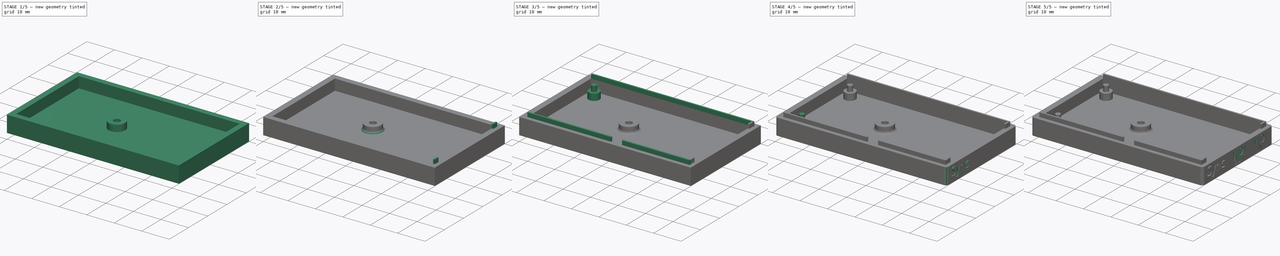
[diagram: build sequence overview — one tinted view per stage of 5, left to right]
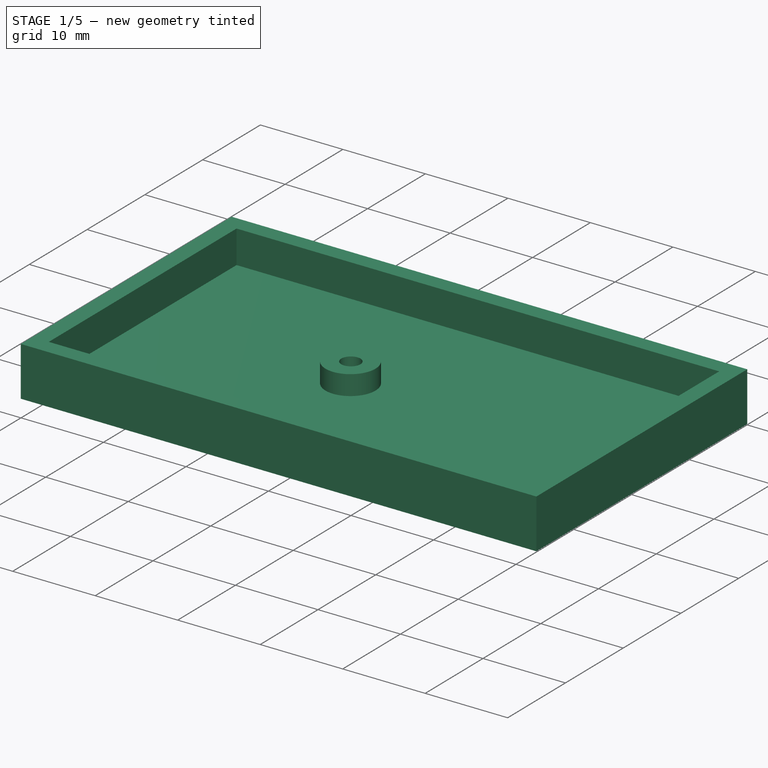
[diagram: stage 1 of 5 — iso view after this stage's code; geometry added in this stage tinted green]
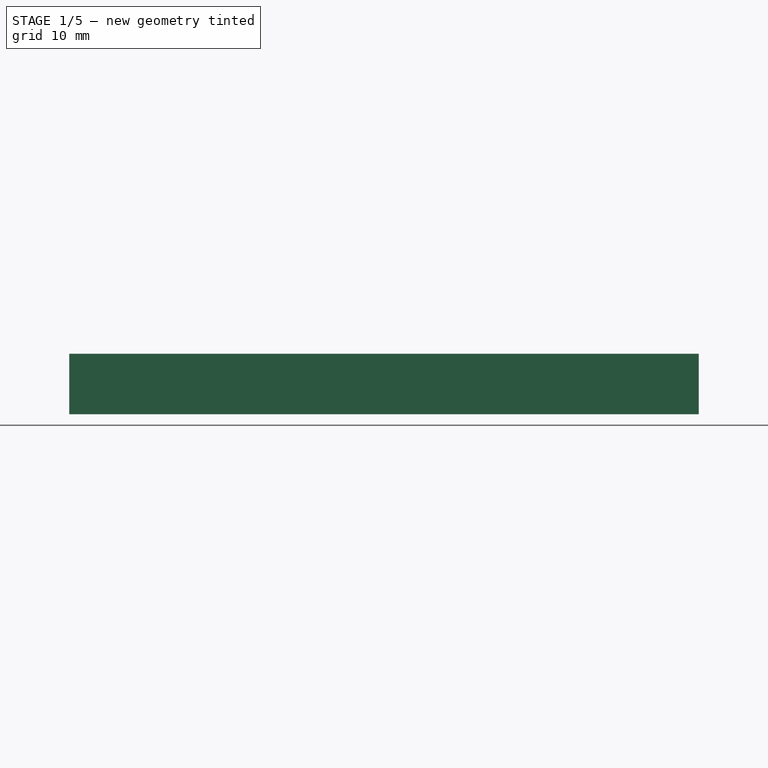
[diagram: stage 1 of 5 — front view after this stage's code; geometry added in this stage tinted green]
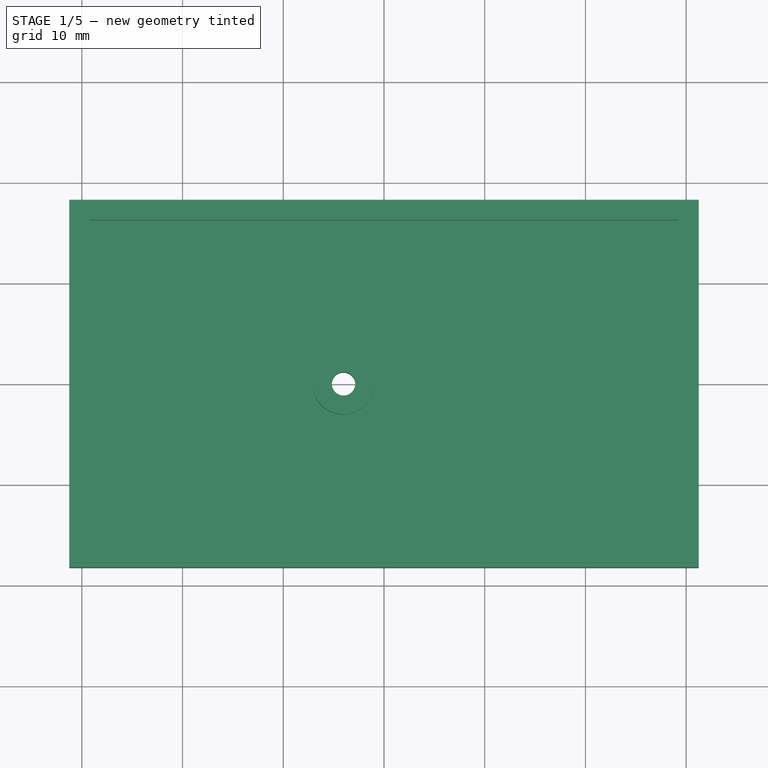
[diagram: stage 1 of 5 — top view after this stage's code; geometry added in this stage tinted green]
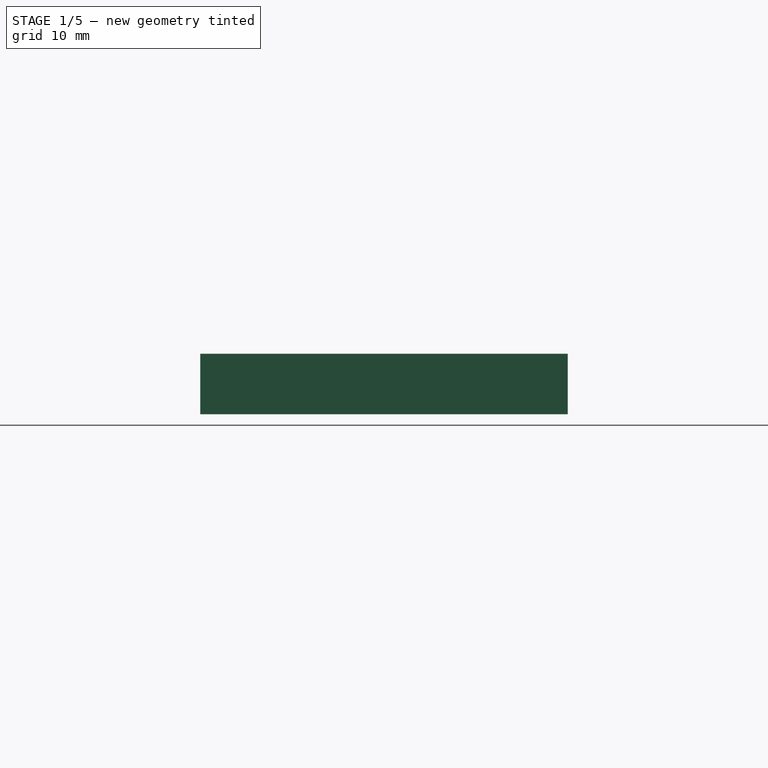
[diagram: stage 1 of 5 — right view after this stage's code; geometry added in this stage tinted green]
FCSTD DOCUMENT  (FreeCAD 0.21R33771 (Git))
Label: UM2S-case-bottom
License: All rights reserved
LicenseURL: http://en.wikipedia.org/wiki/All_rights_reserved
objects: Sketcher::SketchObject×11, PartDesign::Pocket×9, PartDesign::Pad×7, Part::Part2DObjectPython×5, PartDesign::Fillet×2, PartDesign::Body×1
note: 53 computed .brp shape members not serialized (recipe doc carries the construction recipe); baked Part::Feature solids carry a one-line shape summary decoded from their .brp

FEATURE [Sketcher::SketchObject] Sketch
  FullyConstrained = true
  MapMode = 5
  Support = -> [XY_Plane]
  sketch-geometry (5):
    g0: LineSegment StartX=-31.25 StartY=18.25 StartZ=0 EndX=-31.25 EndY=-18.25 EndZ=0
    g1: LineSegment StartX=-31.25 StartY=-18.25 StartZ=0 EndX=31.25 EndY=-18.25 EndZ=0
    g2: LineSegment StartX=31.25 StartY=-18.25 StartZ=0 EndX=31.25 EndY=18.25 EndZ=0
    g3: LineSegment StartX=31.25 StartY=18.25 StartZ=0 EndX=-31.25 EndY=18.25 EndZ=0
    g4: GeomPoint X=0 Y=0 Z=0
  constraints (12):
    c: Coincident(g0,g1)
    c: Coincident(g1,g2)
    c: Coincident(g2,g3)
    c: Coincident(g3,g0)
    c: Horizontal(g1)
    c: Horizontal(g3)
    c: Vertical(g0)
    c: Vertical(g2)
    c: Symmetric(g1,g0,g4)
    c: Coincident(g4,g-1)
    c: Distance(g3) = 62.5
    c: Distance(g0) = 36.5
FEATURE [PartDesign::Pad] Pad
  Direction = (0,0,1)
  Length = 6
  Length2 = 10
  Profile = -> Sketch
  ReferenceAxis = -> Sketch [N_Axis]
  Type = 0
FEATURE [Sketcher::SketchObject] Sketch001
  FullyConstrained = true
  MapMode = 5
  Placement = pos=(0,0,6) rot=(0,0,1;0rad)
  Support = -> [Pad]
  sketch-geometry (5):
    g0: LineSegment StartX=-29.25 StartY=16.25 StartZ=0 EndX=-29.25 EndY=-16.25 EndZ=0
    g1: LineSegment StartX=-29.25 StartY=-16.25 StartZ=0 EndX=29.25 EndY=-16.25 EndZ=0
    g2: LineSegment StartX=29.25 StartY=-16.25 StartZ=0 EndX=29.25 EndY=16.25 EndZ=0
    g3: LineSegment StartX=29.25 StartY=16.25 StartZ=0 EndX=-29.25 EndY=16.25 EndZ=0
    g4: GeomPoint X=0 Y=0 Z=0
  constraints (12):
    c: Coincident(g0,g1)
    c: Coincident(g1,g2)
    c: Coincident(g2,g3)
    c: Coincident(g3,g0)
    c: Horizontal(g1)
    c: Horizontal(g3)
    c: Vertical(g0)
    c: Vertical(g2)
    c: Symmetric(g1,g0,g4)
    c: Coincident(g4,g-1)
    c: Distance(g3) = 58.5
    c: Distance(g0) = 32.5
FEATURE [PartDesign::Pocket] Pocket
  BaseFeature = -> Pad
  Direction = (0,0,-1)
  Length = 4
  Length2 = 5
  Profile = -> Sketch001
  ReferenceAxis = -> Sketch001 [N_Axis]
  Type = 0
FEATURE [Sketcher::SketchObject] Sketch002
  FullyConstrained = false
  MapMode = 5
  Placement = pos=(0,0,2) rot=(0,0,1;0rad)
  Support = -> [Pocket]
  sketch-geometry (1):
    g0: Circle CenterX=-4.06089 CenterY=0 CenterZ=0 NormalX=0 NormalY=0 NormalZ=1 AngleXU=0 Radius=3.02598
  constraints (1):
    c: PointOnObject(g0,g-1)
FEATURE [PartDesign::Pad] Pad001
  BaseFeature = -> Pocket
  Direction = (0,0,1)
  Length = 2.4
  Length2 = 10
  Profile = -> Sketch002
  ReferenceAxis = -> Sketch002 [N_Axis]
  Type = 0
FEATURE [Sketcher::SketchObject] Sketch003
  FullyConstrained = false
  MapMode = 5
  Placement = pos=(0,0,4.4) rot=(0,0,1;0rad)
  Support = -> [Pad001]
  sketch-geometry (1):
    g0: Circle CenterX=-4.01571 CenterY=0 CenterZ=0 NormalX=0 NormalY=0 NormalZ=1 AngleXU=0 Radius=1.1626
  constraints (1):
    c: PointOnObject(g0,g-1)
FEATURE [PartDesign::Pocket] Pocket001
  BaseFeature = -> Pad001
  Direction = (0,0,-1)
  Length = 5
  Length2 = 5
  Profile = -> Sketch003
  ReferenceAxis = -> Sketch003 [N_Axis]
  Type = 0
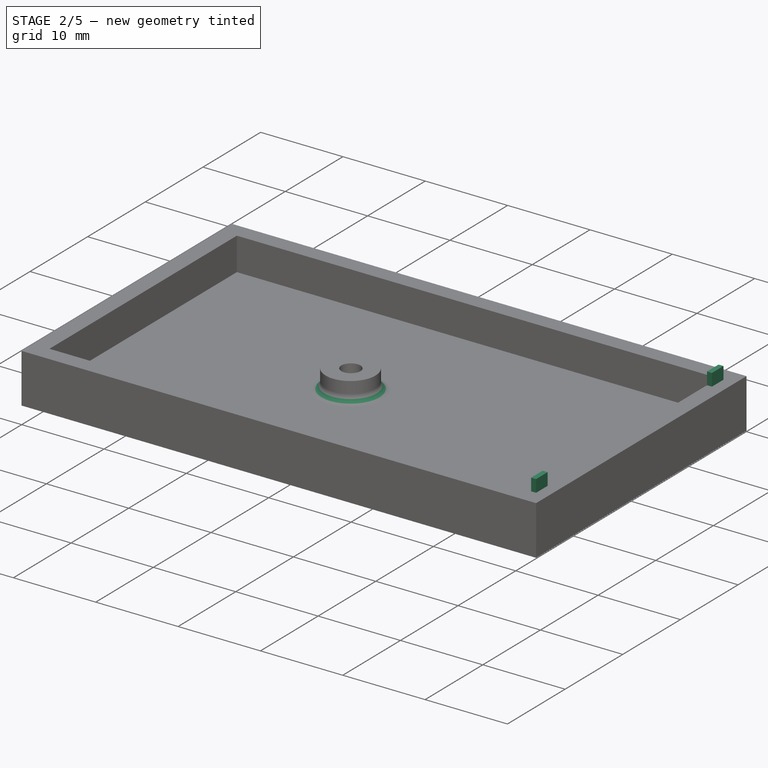
[diagram: stage 2 of 5 — iso view after this stage's code; geometry added in this stage tinted green]
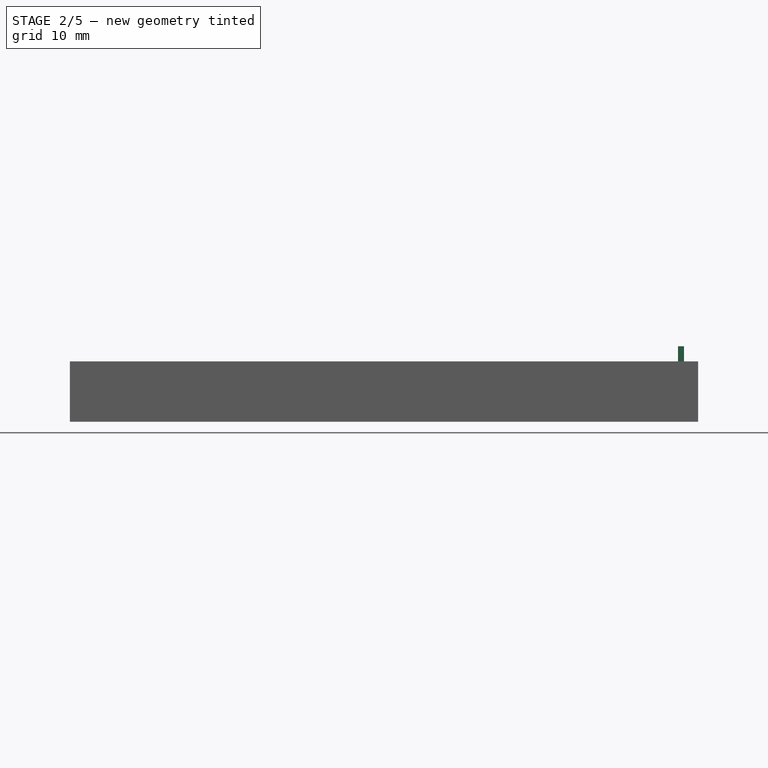
[diagram: stage 2 of 5 — front view after this stage's code; geometry added in this stage tinted green]
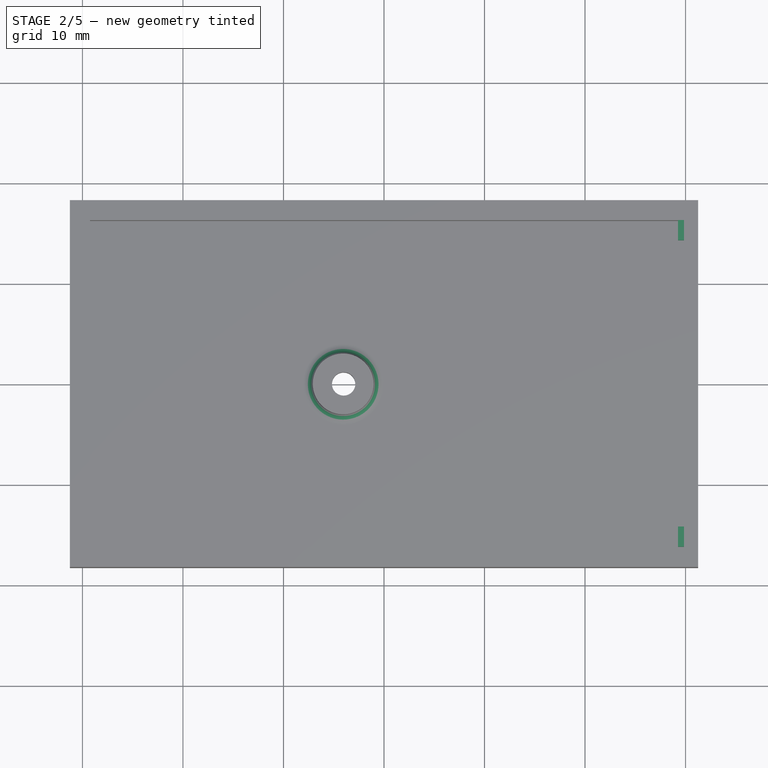
[diagram: stage 2 of 5 — top view after this stage's code; geometry added in this stage tinted green]
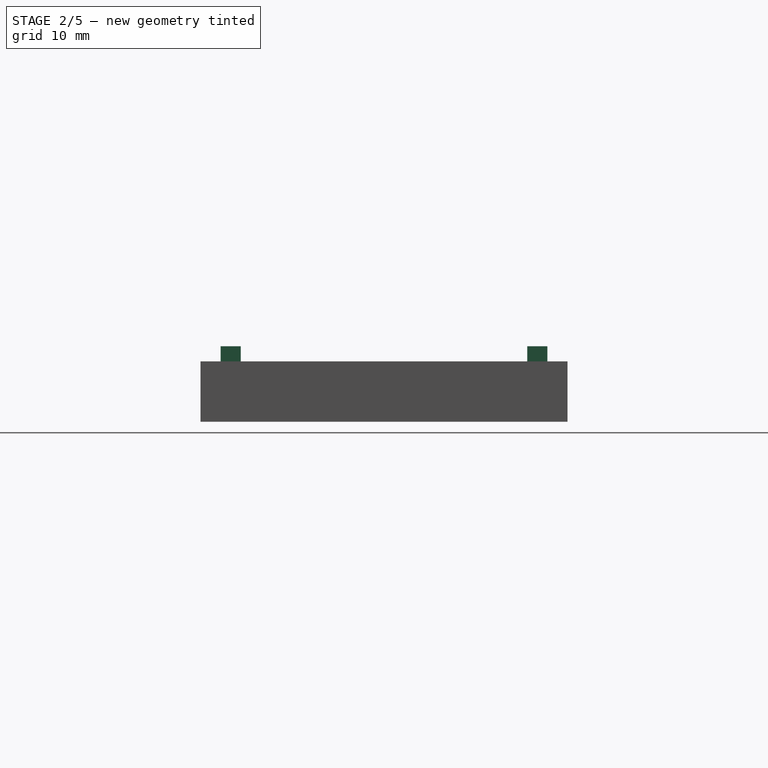
[diagram: stage 2 of 5 — right view after this stage's code; geometry added in this stage tinted green]
FEATURE [Sketcher::SketchObject] Sketch004
  FullyConstrained = false
  MapMode = 5
  Placement = pos=(0,0,0) rot=(1,0,0;3.14159rad)
  Support = -> [Pocket001]
  sketch-geometry (1):
    g0: Circle CenterX=-4.03353 CenterY=0 CenterZ=0 NormalX=0 NormalY=0 NormalZ=1 AngleXU=0 Radius=1.9
  constraints (2):
    c: PointOnObject(g0,g-1)
    c: Diameter(g0) = 3.8
FEATURE [PartDesign::Pocket] Pocket002
  BaseFeature = -> Pocket001
  Direction = (0,0,1)
  Length = 1.35
  Length2 = 5
  Profile = -> Sketch004
  ReferenceAxis = -> Sketch004 [N_Axis]
  Type = 0
FEATURE [PartDesign::Fillet] Fillet
  Base = -> Pocket002 [Edge29]
  BaseFeature = -> Pocket002
  Radius = 1
  SupportTransform = false
  UseAllEdges = false
FEATURE [Sketcher::SketchObject] Sketch005
  ExternalGeometry = -> [Fillet]
  FullyConstrained = true
  MapMode = 5
  Placement = pos=(0,0,6) rot=(0,0,1;0rad)
  Support = -> [Fillet]
  sketch-geometry (8):
    g0: LineSegment StartX=29.25 StartY=16.25 StartZ=0 EndX=29.85 EndY=16.25 EndZ=0
    g1: LineSegment StartX=29.85 StartY=16.25 StartZ=0 EndX=29.85 EndY=14.25 EndZ=0
    g2: LineSegment StartX=29.85 StartY=14.25 StartZ=0 EndX=29.25 EndY=14.25 EndZ=0
    g3: LineSegment StartX=29.25 StartY=14.25 StartZ=0 EndX=29.25 EndY=16.25 EndZ=0
    g4: LineSegment StartX=29.25 StartY=-16.25 StartZ=0 EndX=29.85 EndY=-16.25 EndZ=0
    g5: LineSegment StartX=29.85 StartY=-16.25 StartZ=0 EndX=29.85 EndY=-14.25 EndZ=0
    g6: LineSegment StartX=29.85 StartY=-14.25 StartZ=0 EndX=29.25 EndY=-14.25 EndZ=0
    g7: LineSegment StartX=29.25 StartY=-14.25 StartZ=0 EndX=29.25 EndY=-16.25 EndZ=0
  constraints (22):
    c: Coincident(g0,g1)
    c: Coincident(g1,g2)
    c: Coincident(g2,g3)
    c: Coincident(g3,g0)
    c: Horizontal(g0)
    c: Horizontal(g2)
    c: Vertical(g1)
    c: Vertical(g3)
    c: Coincident(g0,g-3)
    c: Distance(g0) = 0.6
    c: Distance(g1) = 2
    c: Coincident(g4,g5)
    c: Coincident(g5,g6)
    c: Coincident(g6,g7)
    c: Coincident(g7,g4)
    c: Horizontal(g4)
    c: Horizontal(g6)
    c: Vertical(g5)
    c: Vertical(g7)
    c: Coincident(g4,g-4)
    c: Distance(g4) = 0.6
    c: Distance(g5) = 2
FEATURE [PartDesign::Pad] Pad002
  BaseFeature = -> Fillet
  Direction = (0,0,1)
  Length = 1.5
  Length2 = 10
  Profile = -> Sketch005
  ReferenceAxis = -> Sketch005 [N_Axis]
  Type = 0
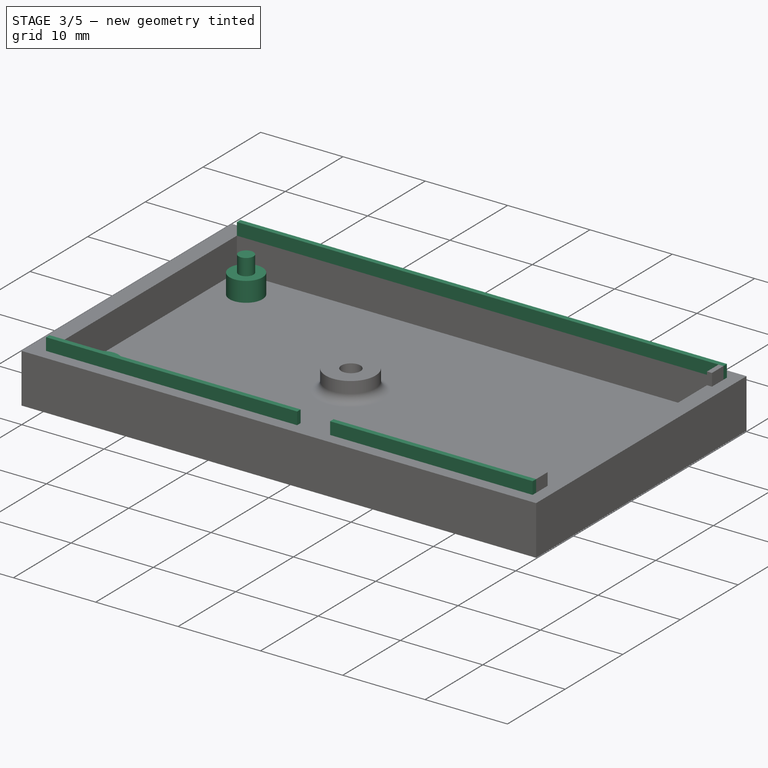
[diagram: stage 3 of 5 — iso view after this stage's code; geometry added in this stage tinted green]
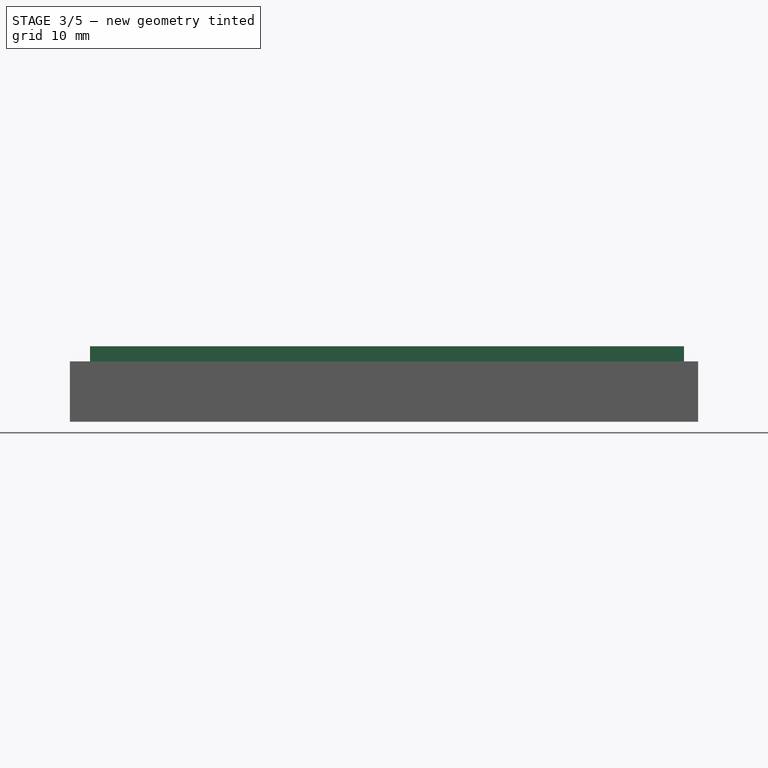
[diagram: stage 3 of 5 — front view after this stage's code; geometry added in this stage tinted green]
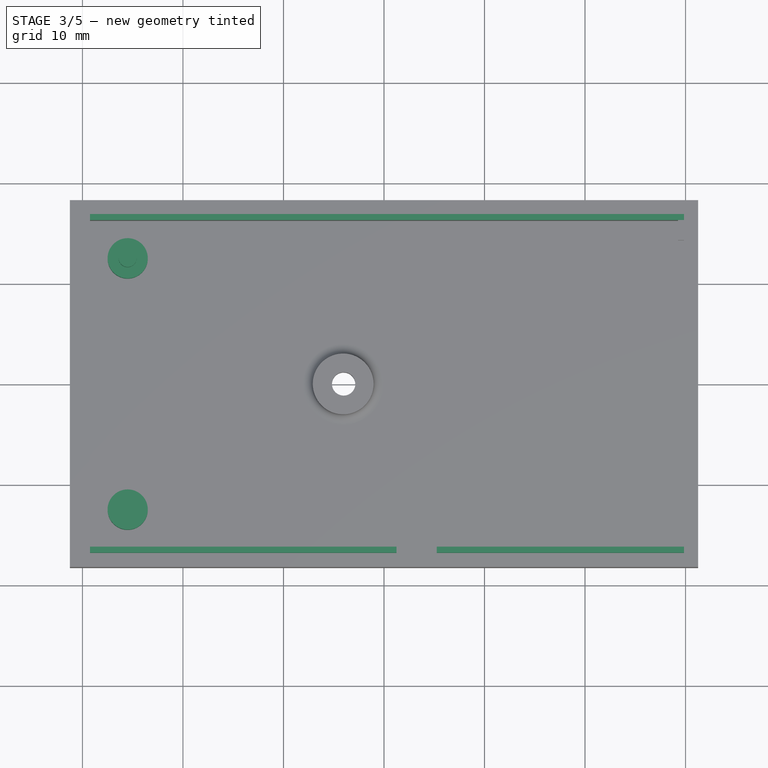
[diagram: stage 3 of 5 — top view after this stage's code; geometry added in this stage tinted green]
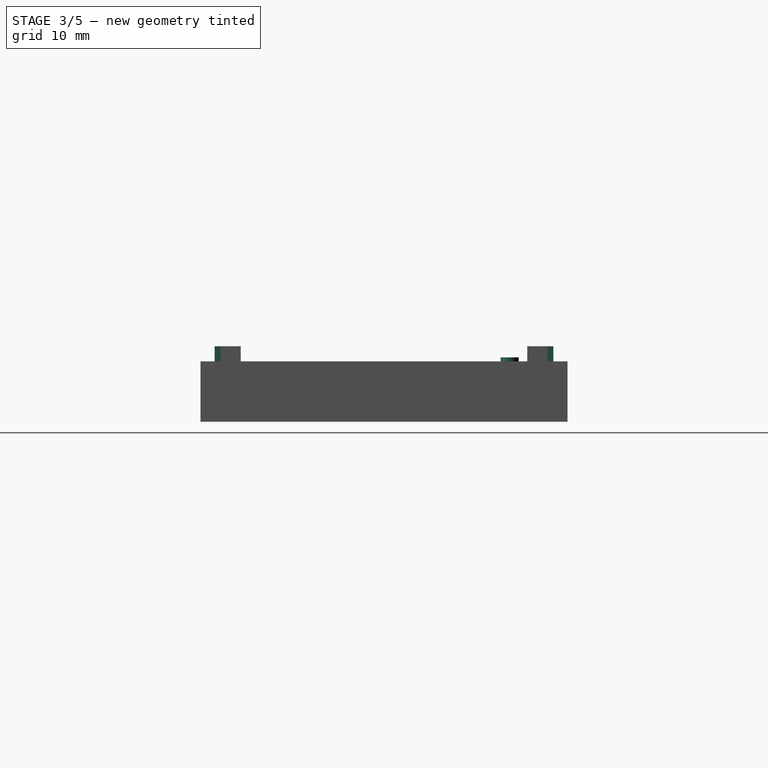
[diagram: stage 3 of 5 — right view after this stage's code; geometry added in this stage tinted green]
FEATURE [Sketcher::SketchObject] Sketch006
  ExternalGeometry = -> [Pad002]
  FullyConstrained = true
  MapMode = 5
  Placement = pos=(0,0,6) rot=(0,0,1;0rad)
  Support = -> [Pad002]
  sketch-geometry (8):
    g0: LineSegment StartX=-29.25 StartY=16.25 StartZ=0 EndX=29.85 EndY=16.25 EndZ=0
    g1: LineSegment StartX=29.85 StartY=16.25 StartZ=0 EndX=29.85 EndY=16.85 EndZ=0
    g2: LineSegment StartX=29.85 StartY=16.85 StartZ=0 EndX=-29.25 EndY=16.85 EndZ=0
    g3: LineSegment StartX=-29.25 StartY=16.85 StartZ=0 EndX=-29.25 EndY=16.25 EndZ=0
    g4: LineSegment StartX=-29.25 StartY=-16.25 StartZ=0 EndX=29.85 EndY=-16.25 EndZ=0
    g5: LineSegment StartX=29.85 StartY=-16.25 StartZ=0 EndX=29.85 EndY=-16.85 EndZ=0
    g6: LineSegment StartX=29.85 StartY=-16.85 StartZ=0 EndX=-29.25 EndY=-16.85 EndZ=0
    g7: LineSegment StartX=-29.25 StartY=-16.85 StartZ=0 EndX=-29.25 EndY=-16.25 EndZ=0
  constraints (22):
    c: Coincident(g0,g1)
    c: Coincident(g1,g2)
    c: Coincident(g2,g3)
    c: Coincident(g3,g0)
    c: Horizontal(g0)
    c: Horizontal(g2)
    c: Vertical(g1)
    c: Vertical(g3)
    c: Coincident(g0,g-3)
    c: Distance(g1) = 0.6
    c: Distance(g2) = 59.1
    c: Coincident(g4,g5)
    c: Coincident(g5,g6)
    c: Coincident(g6,g7)
    c: Coincident(g7,g4)
    c: Horizontal(g4)
    c: Horizontal(g6)
    c: Vertical(g5)
    c: Vertical(g7)
    c: Coincident(g4,g-5)
    c: Distance(g5) = 0.6
    c: Distance(g4) = 59.1
FEATURE [PartDesign::Pad] Pad003
  BaseFeature = -> Pad002
  Direction = (0,0,1)
  Length = 1.5
  Length2 = 10
  Profile = -> Sketch006
  ReferenceAxis = -> Sketch006 [N_Axis]
  Type = 0
FEATURE [Sketcher::SketchObject] Sketch007
  ExternalGeometry = -> [Pad003]
  FullyConstrained = false
  MapMode = 5
  Placement = pos=(0,0,7.5) rot=(0,0,1;0rad)
  Support = -> [Pad003]
  sketch-geometry (4):
    g0: LineSegment StartX=1.24973 StartY=-16.1778 StartZ=0 EndX=5.24973 EndY=-16.1778 EndZ=0
    g1: LineSegment StartX=5.24973 StartY=-16.1778 StartZ=0 EndX=5.24973 EndY=-16.9779 EndZ=0
    g2: LineSegment StartX=5.24973 StartY=-16.9779 StartZ=0 EndX=1.24973 EndY=-16.9779 EndZ=0
    g3: LineSegment StartX=1.24973 StartY=-16.9779 StartZ=0 EndX=1.24973 EndY=-16.1778 EndZ=0
  constraints (10):
    c: Coincident(g0,g1)
    c: Coincident(g1,g2)
    c: Coincident(g2,g3)
    c: Coincident(g3,g0)
    c: Horizontal(g0)
    c: Horizontal(g2)
    c: Vertical(g1)
    c: Vertical(g3)
    c: Distance(g0) = 4
    c: Distance(g-4,g2) = 30.5
FEATURE [PartDesign::Pocket] Pocket003
  BaseFeature = -> Pad003
  Direction = (0,0,-1)
  Length = 1.5
  Length2 = 5
  Profile = -> Sketch007
  ReferenceAxis = -> Sketch007 [N_Axis]
  Type = 0
FEATURE [Sketcher::SketchObject] Sketch008
  FullyConstrained = true
  MapMode = 5
  Placement = pos=(0,0,2) rot=(0,0,1;0rad)
  Support = -> [Pocket003]
  sketch-geometry (2):
    g0: Circle CenterX=-25.5 CenterY=12.5 CenterZ=0 NormalX=0 NormalY=0 NormalZ=1 AngleXU=0 Radius=2
    g1: Circle CenterX=-25.5 CenterY=-12.5 CenterZ=0 NormalX=0 NormalY=0 NormalZ=1 AngleXU=0 Radius=2
  constraints (6):
    c: Distance(g1,g-2) = 25.5
    c: Distance(g0,g-2) = 25.5
    c: Diameter(g0) = 4
    c: Diameter(g1) = 4
    c: Distance(g0,g-1) = 12.5
    c: Distance(g1,g-1) = 12.5
FEATURE [PartDesign::Pad] Pad004
  BaseFeature = -> Pocket003
  Direction = (0,0,1)
  Length = 2.4
  Length2 = 10
  Profile = -> Sketch008
  ReferenceAxis = -> Sketch008 [N_Axis]
  Type = 0
FEATURE [Sketcher::SketchObject] Sketch009
  FullyConstrained = true
  MapMode = 5
  Placement = pos=(0,0,4.4) rot=(0,0,1;0rad)
  Support = -> [Pad004]
  sketch-geometry (1):
    g0: Circle CenterX=-25.5 CenterY=12.5 CenterZ=0 NormalX=0 NormalY=0 NormalZ=1 AngleXU=0 Radius=0.9
  constraints (3):
    c: Distance(g0,g-2) = 25.5
    c: Distance(g0,g-1) = 12.5
    c: Diameter(g0) = 1.8
FEATURE [PartDesign::Pad] Pad005
  BaseFeature = -> Pad004
  Direction = (0,0,1)
  Length = 2
  Length2 = 10
  Profile = -> Sketch009
  ReferenceAxis = -> Sketch009 [N_Axis]
  Type = 0
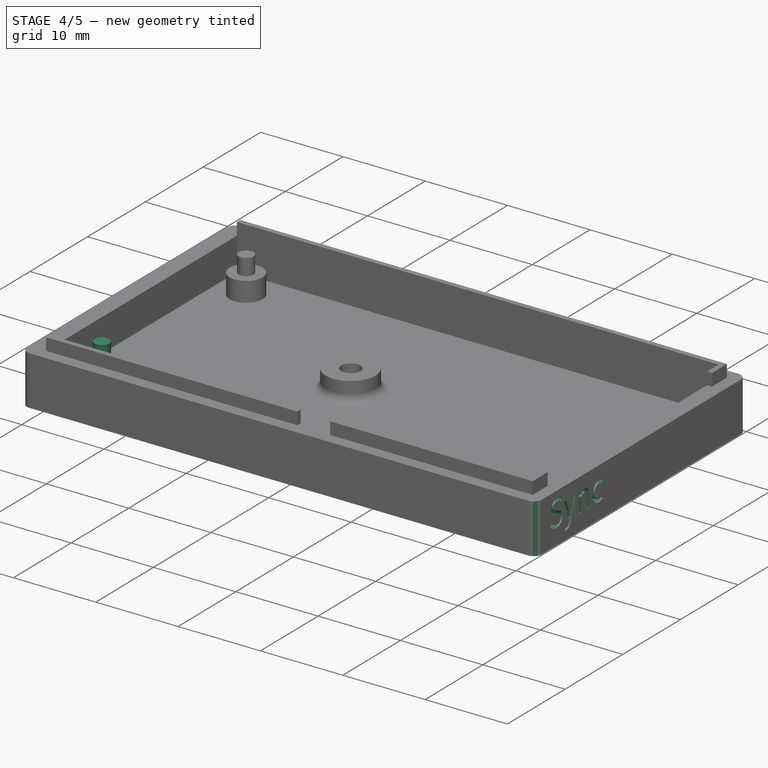
[diagram: stage 4 of 5 — iso view after this stage's code; geometry added in this stage tinted green]
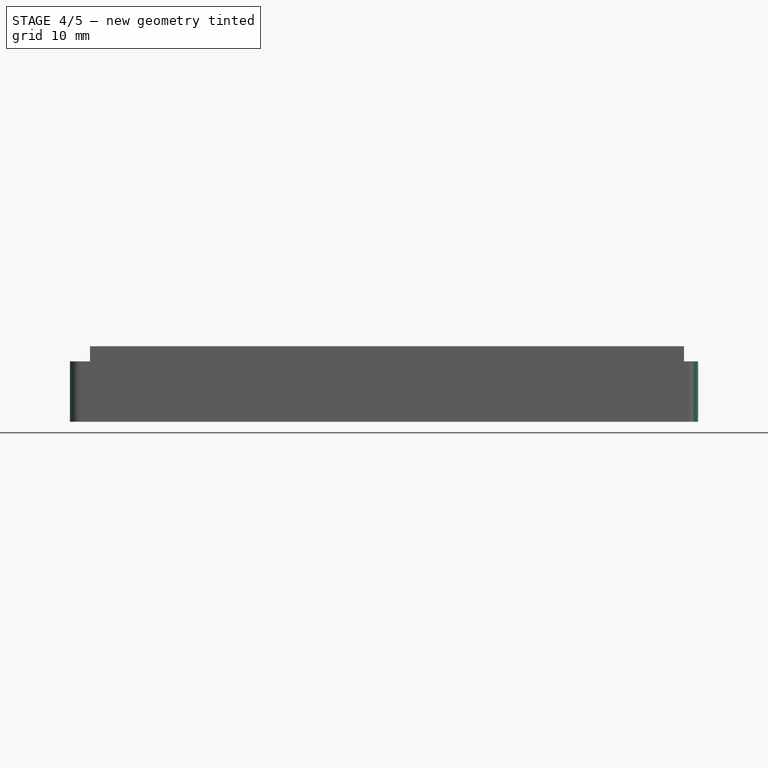
[diagram: stage 4 of 5 — front view after this stage's code; geometry added in this stage tinted green]
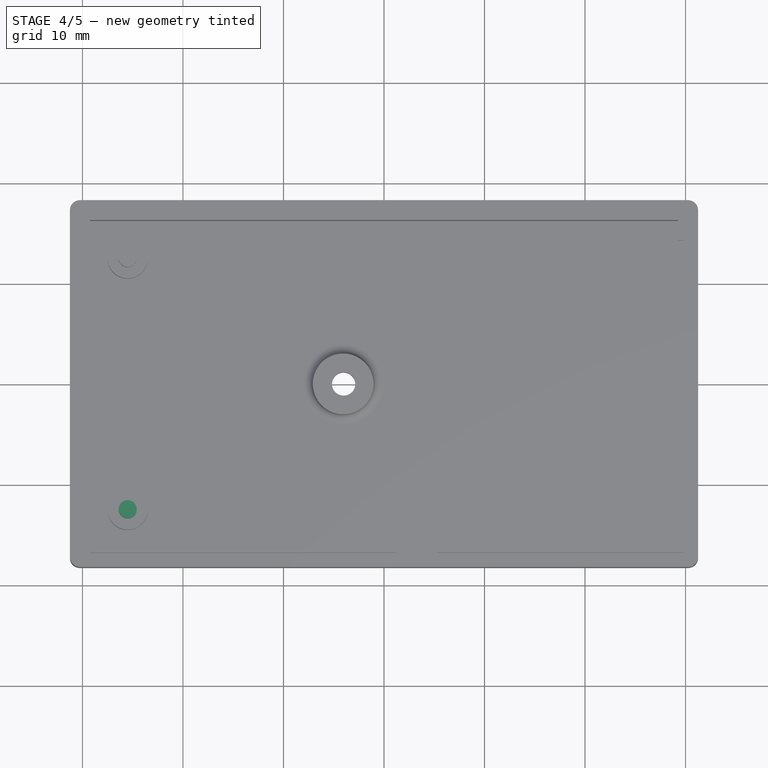
[diagram: stage 4 of 5 — top view after this stage's code; geometry added in this stage tinted green]
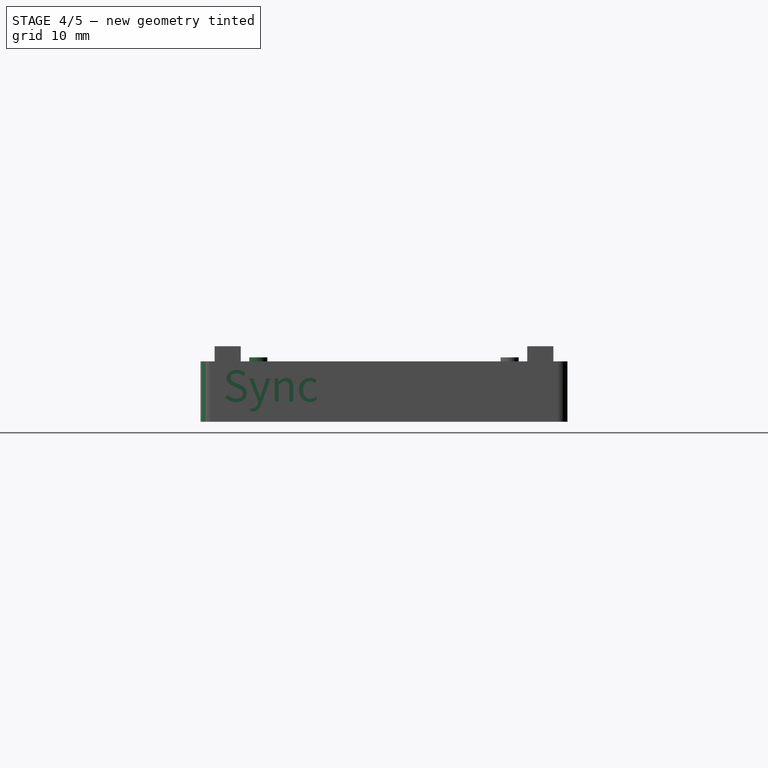
[diagram: stage 4 of 5 — right view after this stage's code; geometry added in this stage tinted green]
FEATURE [Sketcher::SketchObject] Sketch010
  FullyConstrained = true
  MapMode = 5
  Placement = pos=(0,0,4.4) rot=(0,0,1;0rad)
  Support = -> [Pad005]
  sketch-geometry (1):
    g0: Circle CenterX=-25.5 CenterY=-12.5 CenterZ=0 NormalX=0 NormalY=0 NormalZ=1 AngleXU=0 Radius=0.9
  constraints (3):
    c: Distance(g0,g-2) = 25.5
    c: Distance(g0,g-1) = 12.5
    c: Diameter(g0) = 1.8
FEATURE [PartDesign::Pad] Pad006
  BaseFeature = -> Pad005
  Direction = (0,0,1)
  Length = 2
  Length2 = 10
  Profile = -> Sketch010
  ReferenceAxis = -> Sketch010 [N_Axis]
  Type = 0
FEATURE [Part::Part2DObjectPython] ShapeString  # Draft 2D object (typed FeaturePython)
  AttachmentOffset = pos=(-16,2,0) rot=(0,0,1;0rad)
  FontFile = <userpath>/Documents/FreeCAD/SourceHanSansJP-Regular.otf
  MakeFace = true
  MapMode = 5
  Placement = pos=(31.25,-16,2) rot=(0.57735,0.57735,0.57735;2.0944rad)
  Size = 2
  String = Sync
  Support = -> [Pad006]
  Tracking = 0
FEATURE [Part::Part2DObjectPython] ShapeString001  # Draft 2D object (typed FeaturePython)
  AttachmentOffset = pos=(-3,2.6,0) rot=(0,0,1;0rad)
  FontFile = <userpath>/Documents/FreeCAD/SourceHanSansJP-Regular.otf
  MakeFace = true
  MapMode = 5
  Placement = pos=(31.25,-3,2.6) rot=(0.57735,0.57735,0.57735;2.0944rad)
  Size = 1.6
  String = MIDI
  Support = -> [Pad006]
  Tracking = 0
FEATURE [Part::Part2DObjectPython] ShapeString003  # Draft 2D object (typed FeaturePython)
  AttachmentOffset = pos=(8,2.5,0) rot=(0,0,1;0rad)
  FontFile = <userpath>/Documents/FreeCAD/SourceHanSansJP-Regular.otf
  MakeFace = true
  MapMode = 5
  Placement = pos=(31.25,8,2.5) rot=(0.57735,0.57735,0.57735;2.0944rad)
  Size = 1.6
  String = MIDI
  Support = -> [Pad006]
  Tracking = 0
FEATURE [Part::Part2DObjectPython] ShapeString004  # Draft 2D object (typed FeaturePython)
  AttachmentOffset = pos=(9,0.5,0) rot=(0,0,1;0rad)
  FontFile = <userpath>/Documents/FreeCAD/SourceHanSansJP-Regular.otf
  MakeFace = true
  MapMode = 5
  Placement = pos=(31.25,9,0.5) rot=(0.57735,0.57735,0.57735;2.0944rad)
  Size = 1.2
  String =   IN
  Support = -> [Pad006]
  Tracking = 0
FEATURE [PartDesign::Fillet] Fillet001
  Base = -> Pad006 [Edge67,Edge64,Edge65,Edge69]
  BaseFeature = -> Pad006
  Radius = 1
  SupportTransform = false
  UseAllEdges = false
FEATURE [PartDesign::Pocket] Pocket004
  BaseFeature = -> Fillet001
  Direction = (-1,0,0)
  Length = 1
  Length2 = 5
  Profile = -> ShapeString
  ReferenceAxis = -> ShapeString [N_Axis]
  Type = 0
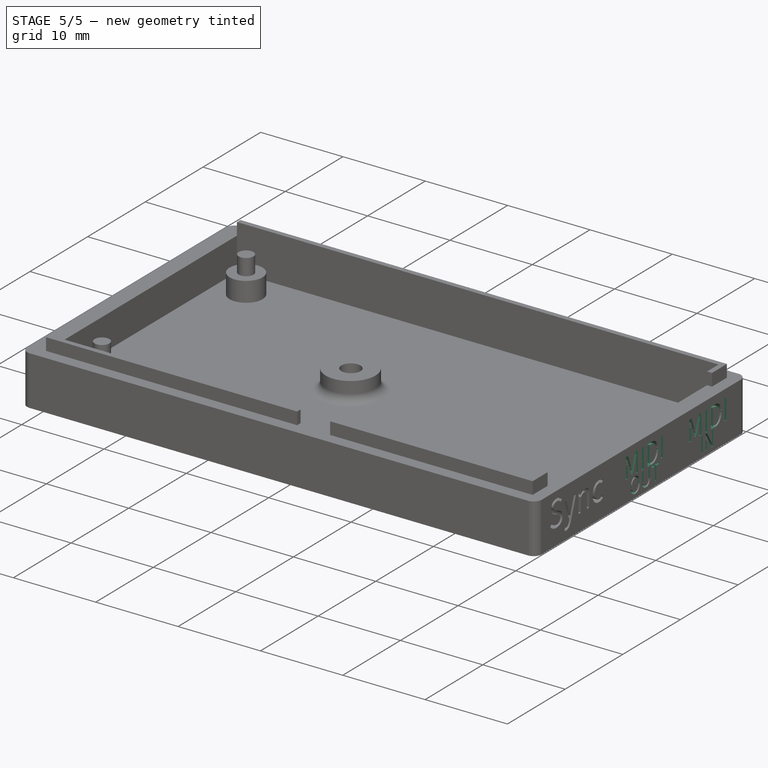
[diagram: stage 5 of 5 — iso view after this stage's code; geometry added in this stage tinted green]
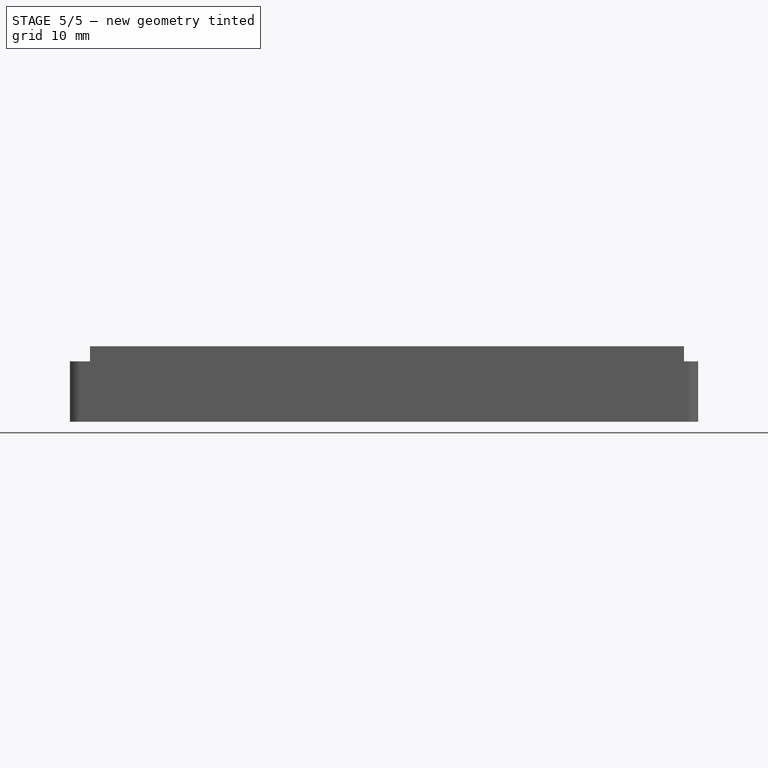
[diagram: stage 5 of 5 — front view after this stage's code; geometry added in this stage tinted green]
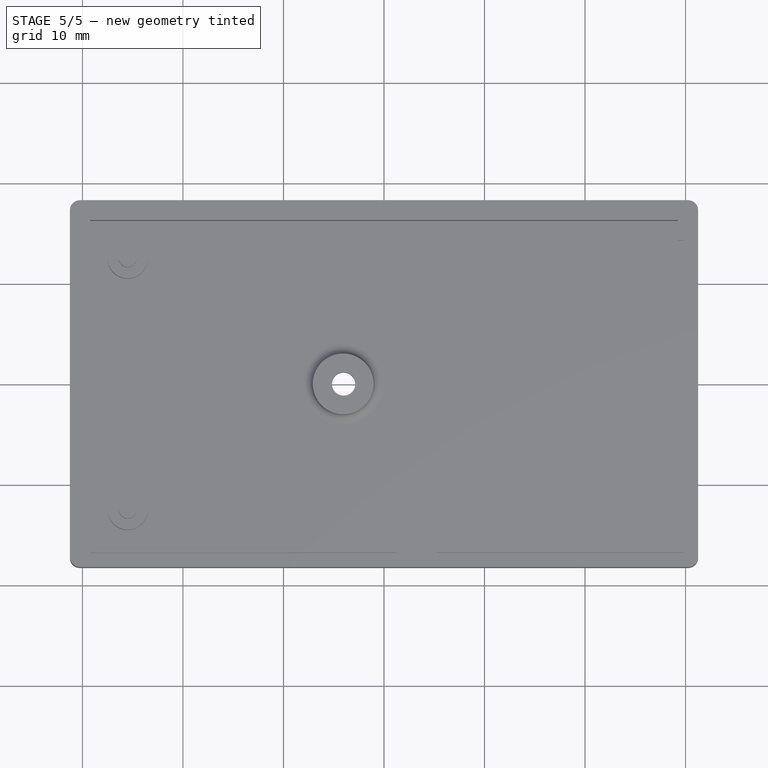
[diagram: stage 5 of 5 — top view after this stage's code; geometry added in this stage tinted green]
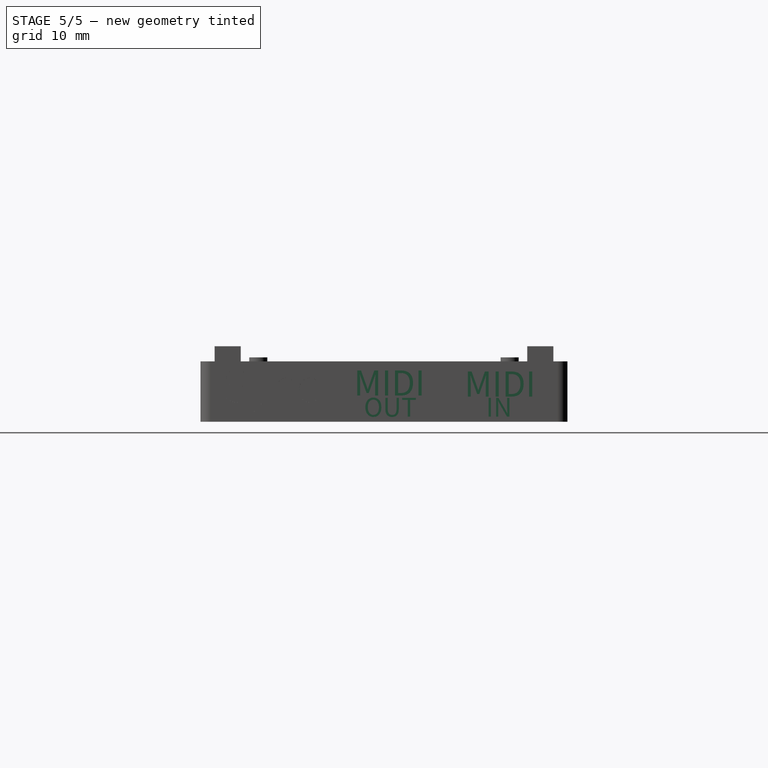
[diagram: stage 5 of 5 — right view after this stage's code; geometry added in this stage tinted green]
FEATURE [PartDesign::Pocket] Pocket005
  BaseFeature = -> Pocket004
  Direction = (-1,0,0)
  Length = 1
  Length2 = 5
  Profile = -> ShapeString001
  ReferenceAxis = -> ShapeString001 [N_Axis]
  Type = 0
FEATURE [PartDesign::Pocket] Pocket007
  BaseFeature = -> Pocket005
  Direction = (-1,0,0)
  Length = 1
  Length2 = 5
  Profile = -> ShapeString003
  ReferenceAxis = -> ShapeString003 [N_Axis]
  Type = 0
FEATURE [PartDesign::Pocket] Pocket008
  BaseFeature = -> Pocket007
  Direction = (-1,0,0)
  Length = 1
  Length2 = 5
  Profile = -> ShapeString004
  ReferenceAxis = -> ShapeString004 [N_Axis]
  Type = 0
FEATURE [Part::Part2DObjectPython] ShapeString005  # Draft 2D object (typed FeaturePython)
  FontFile = <userpath>/Documents/FreeCAD/SourceHanSansJP-Regular.otf
  MakeFace = true
  Placement = pos=(31.25,-2,0.5) rot=(0.57735,0.57735,0.57735;2.0944rad)
  Size = 1.2
  String = OUT
  Tracking = 0
FEATURE [PartDesign::Pocket] Pocket009
  BaseFeature = -> Pocket008
  Direction = (-1,0,0)
  Length = 1
  Length2 = 5
  Profile = -> ShapeString005
  ReferenceAxis = -> ShapeString005 [N_Axis]
  Type = 0
FEATURE [PartDesign::Body] Body
  Group = -> [Sketch,Pad,Sketch001,Pocket,Sketch002,Pad001,Sketch003,Pocket001,Sketch004,Pocket002,Fillet,Sketch005,Pad002,Sketch006,Pad003,Sketch007,Pocket003,Sketch008,Pad004,Sketch009,Pad005,Sketch010,Pad006,ShapeString,ShapeString001,ShapeString003,ShapeString004,Fillet001,Pocket004,Pocket005,Pocket007,Pocket008,ShapeString005,Pocket009]
  Origin = -> Origin
  Tip = -> Pocket009
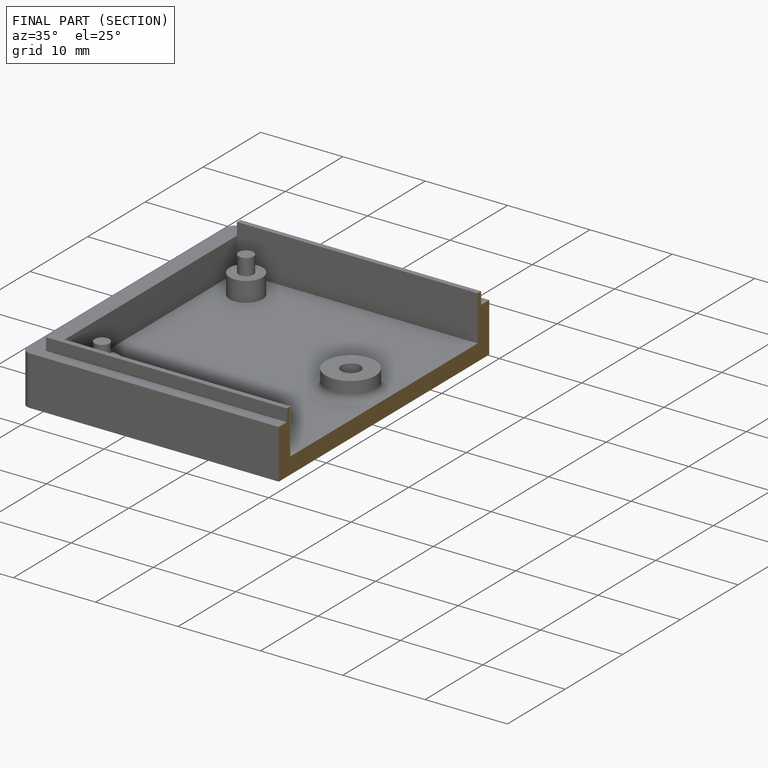
[diagram: finished part — half-section view (interior)]
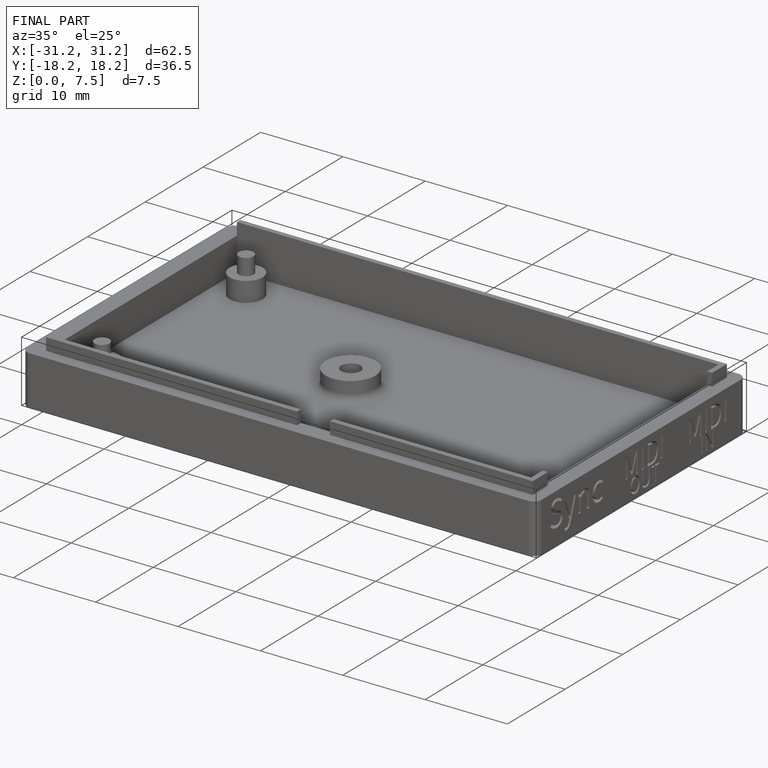
[diagram: finished part — iso view with bounding-box wireframe]
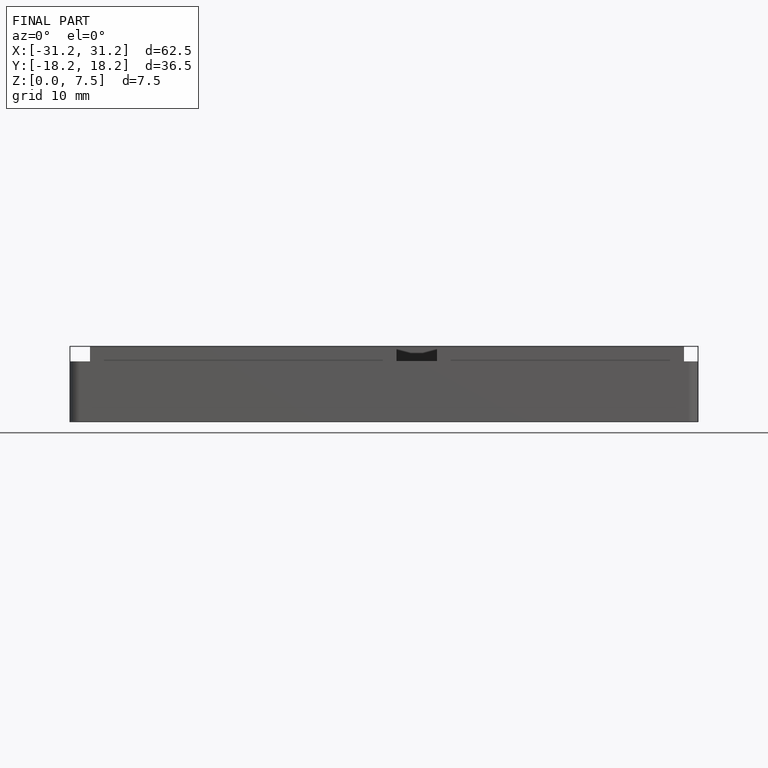
[diagram: finished part — front view with bounding-box wireframe]
